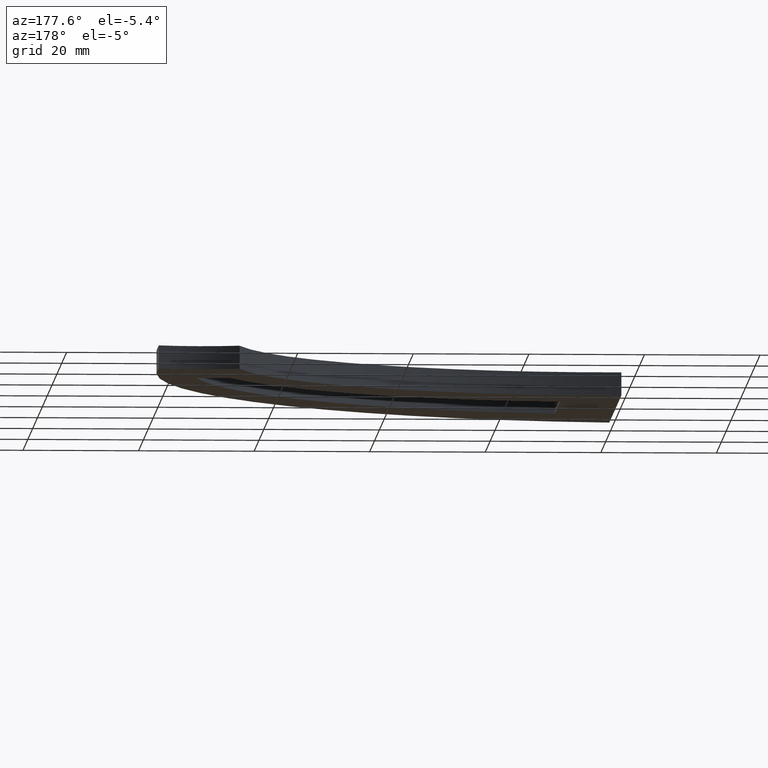
[diagram: clean part render]
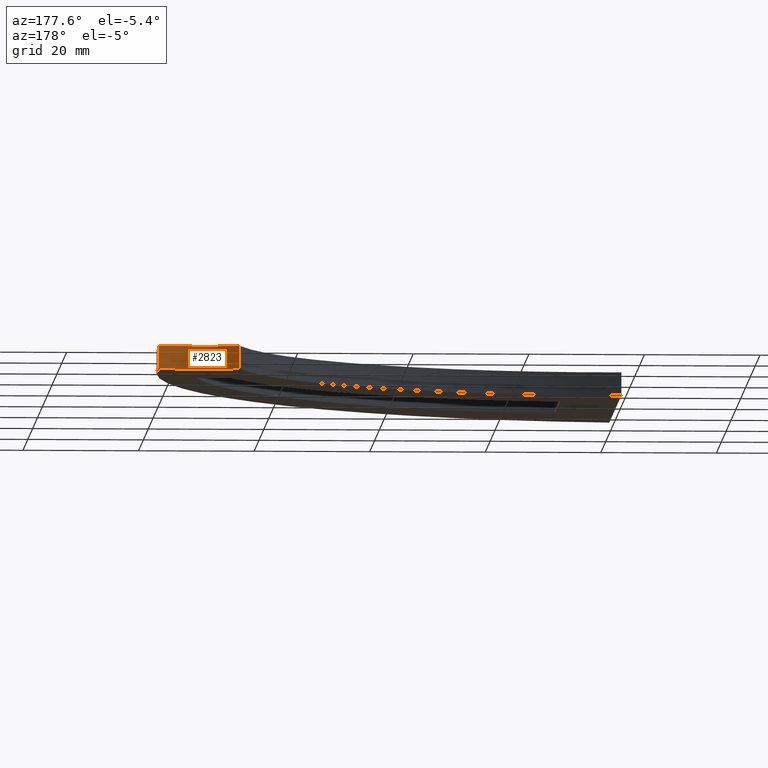
[diagram: same view with one face highlighted and labeled with its STEP entity id]
A machine part, auxiliary view. The second image highlights one B-rep face of the part: STEP entity #2823.
In plain terms, the highlighted cylindrical surface (partial cylindrical patch) has radius 21.2 mm, axis along (-0, -0, -1).
Its self-contained STEP definition (entity closure, byte-faithful):
#305 = EDGE_CURVE ( 'NONE', #9880, #3038, #10940, .T. ) ;
#786 = DIRECTION ( 'NONE',  ( 1.000000000000000000, 0.000000000000000000, 0.000000000000000000 ) ) ;
#885 = ORIENTED_EDGE ( 'NONE', *, *, #8703, .F. ) ;
#1004 = CYLINDRICAL_SURFACE ( 'NONE', #3589, 21.20000000000000284 ) ;
#1344 = EDGE_CURVE ( 'NONE', #2443, #6435, #5405, .T. ) ;
#1634 = CARTESIAN_POINT ( 'NONE',  ( 68.00000000000000000, 71.18900302333739205, 2.000000000000000000 ) ) ;
#1888 = CIRCLE ( 'NONE', #9805, 21.19999999999999574 ) ;
#2304 = VECTOR ( 'NONE', #7971, 1000.000000000000000 ) ;
#2443 = VERTEX_POINT ( 'NONE', #10656 ) ;
#2607 = ORIENTED_EDGE ( 'NONE', *, *, #305, .T. ) ;
#2823 = ADVANCED_FACE ( 'NONE', ( #5818 ), #1004, .F. ) ;
#3038 = VERTEX_POINT ( 'NONE', #4803 ) ;
#3285 = CARTESIAN_POINT ( 'NONE',  ( 81.99999999999997158, 71.18900302333739205, 2.000000000000000000 ) ) ;
#3589 = AXIS2_PLACEMENT_3D ( 'NONE', #6361, #4471, #5378 ) ;
#3801 = CARTESIAN_POINT ( 'NONE',  ( 74.99999999999998579, 91.20000000000000284, -2.000000000000000000 ) ) ;
#3838 = DIRECTION ( 'NONE',  ( -0.000000000000000000, 0.000000000000000000, 1.000000000000000000 ) ) ;
#4471 = DIRECTION ( 'NONE',  ( -0.000000000000000000, -0.000000000000000000, -1.000000000000000000 ) ) ;
#4663 = DIRECTION ( 'NONE',  ( 1.000000000000000000, 0.000000000000000000, 0.000000000000000000 ) ) ;
#4803 = CARTESIAN_POINT ( 'NONE',  ( 81.99999999999997158, 71.18900302333739205, -2.000000000000000000 ) ) ;
#4909 = EDGE_CURVE ( 'NONE', #2443, #9880, #1888, .T. ) ;
#5234 = CIRCLE ( 'NONE', #7814, 21.19999999999999574 ) ;
#5378 = DIRECTION ( 'NONE',  ( -1.000000000000000000, 0.000000000000000000, 0.000000000000000000 ) ) ;
#5405 = LINE ( 'NONE', #1634, #2304 ) ;
#5606 = EDGE_LOOP ( 'NONE', ( #885, #8026, #6154, #2607 ) ) ;
#5818 = FACE_OUTER_BOUND ( 'NONE', #5606, .T. ) ;
#6143 = CARTESIAN_POINT ( 'NONE',  ( 74.99999999999998579, 91.20000000000000284, 2.000000000000000000 ) ) ;
#6154 = ORIENTED_EDGE ( 'NONE', *, *, #4909, .T. ) ;
#6361 = CARTESIAN_POINT ( 'NONE',  ( 74.99999999999998579, 91.20000000000000284, 2.000000000000000000 ) ) ;
#6435 = VERTEX_POINT ( 'NONE', #10800 ) ;
#7028 = DIRECTION ( 'NONE',  ( -0.000000000000000000, 0.000000000000000000, 1.000000000000000000 ) ) ;
#7382 = VECTOR ( 'NONE', #11288, 1000.000000000000000 ) ;
#7814 = AXIS2_PLACEMENT_3D ( 'NONE', #3801, #3838, #4663 ) ;
#7971 = DIRECTION ( 'NONE',  ( -0.000000000000000000, -0.000000000000000000, -1.000000000000000000 ) ) ;
#8026 = ORIENTED_EDGE ( 'NONE', *, *, #1344, .F. ) ;
#8703 = EDGE_CURVE ( 'NONE', #6435, #3038, #5234, .T. ) ;
#9805 = AXIS2_PLACEMENT_3D ( 'NONE', #6143, #7028, #786 ) ;
#9880 = VERTEX_POINT ( 'NONE', #3285 ) ;
#10656 = CARTESIAN_POINT ( 'NONE',  ( 68.00000000000000000, 71.18900302333739205, 2.000000000000000000 ) ) ;
#10800 = CARTESIAN_POINT ( 'NONE',  ( 68.00000000000000000, 71.18900302333739205, -2.000000000000000000 ) ) ;
#10940 = LINE ( 'NONE', #11255, #7382 ) ;
#11255 = CARTESIAN_POINT ( 'NONE',  ( 81.99999999999997158, 71.18900302333739205, 2.000000000000000000 ) ) ;
#11288 = DIRECTION ( 'NONE',  ( -0.000000000000000000, -0.000000000000000000, -1.000000000000000000 ) ) ;